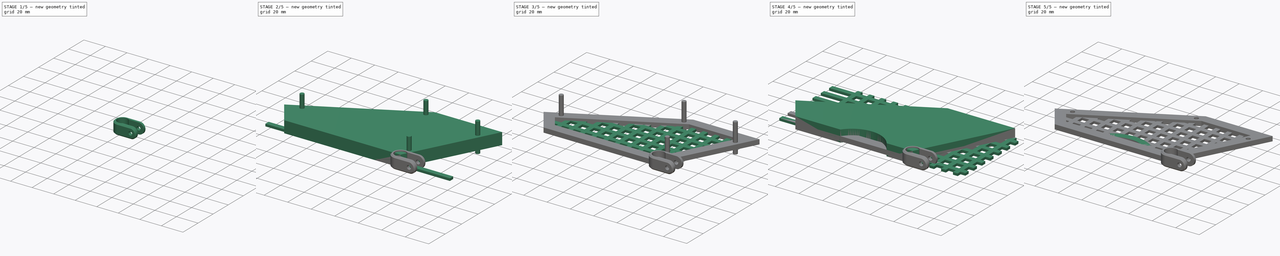
[diagram: build sequence overview — one tinted view per stage of 5, left to right]
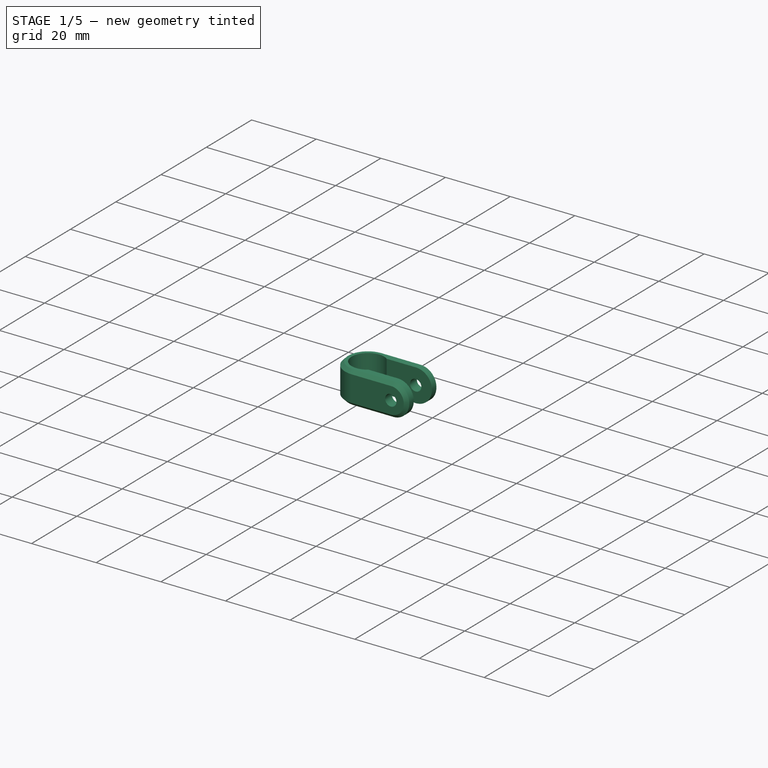
[diagram: stage 1 of 5 — iso view after this stage's code; geometry added in this stage tinted green]
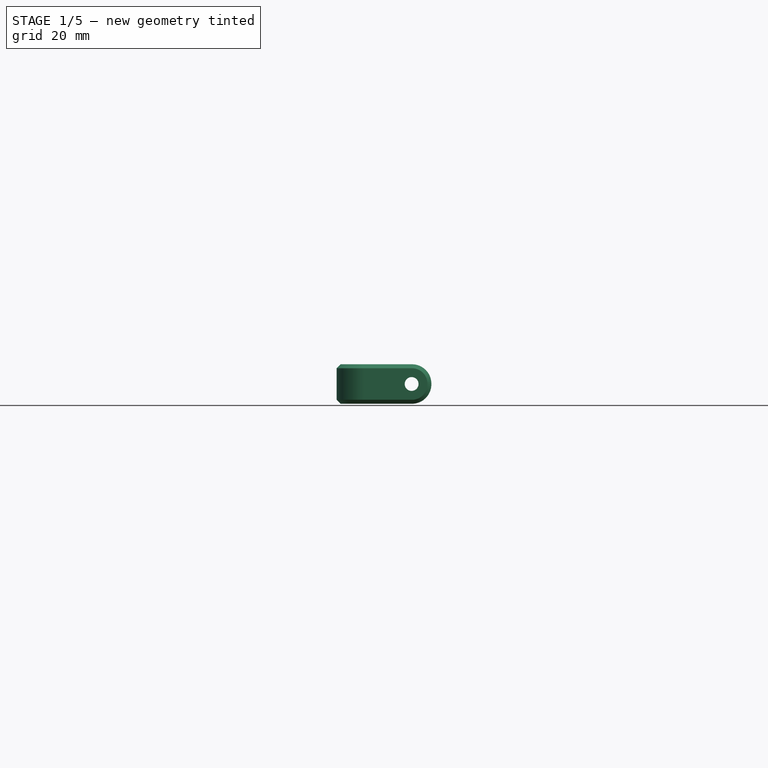
[diagram: stage 1 of 5 — front view after this stage's code; geometry added in this stage tinted green]
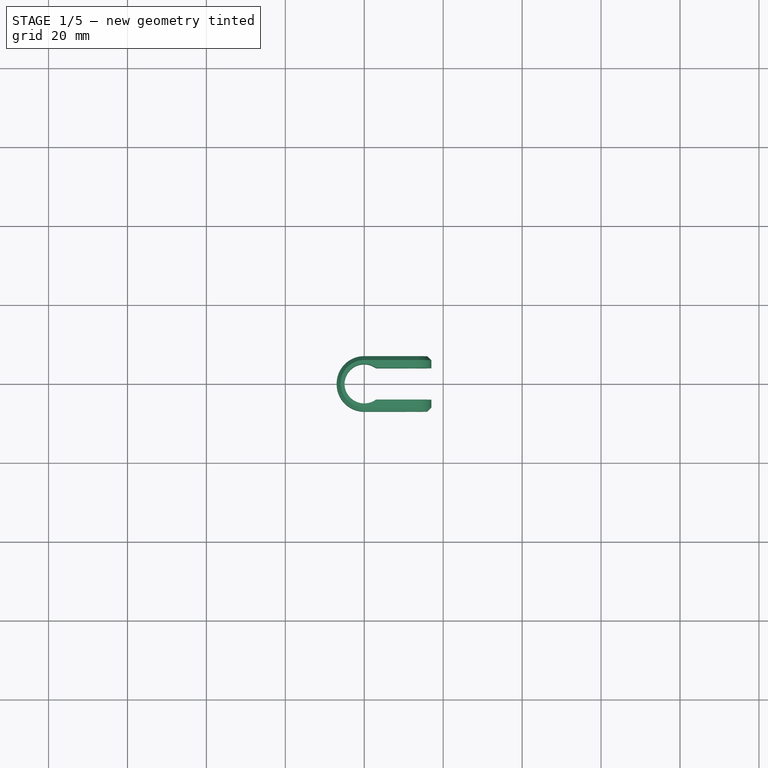
[diagram: stage 1 of 5 — top view after this stage's code; geometry added in this stage tinted green]
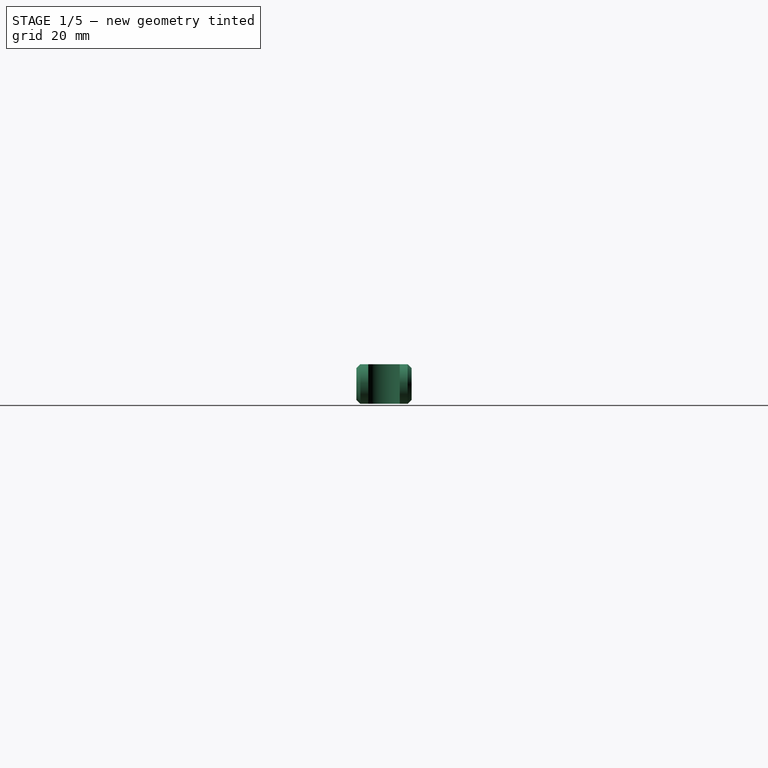
[diagram: stage 1 of 5 — right view after this stage's code; geometry added in this stage tinted green]
FCSTD DOCUMENT  (FreeCAD 0.15R4671 (Git))
Label: ventana_hpi_baja
License: All rights reserved
LicenseURL: http://en.wikipedia.org/wiki/All_rights_reserved
objects: Sketcher::SketchObject×7, PartDesign::Pad×7, Part::MultiFuse×4, Part::Cut×3, Part::Box×2, Part::FeaturePython×2, Part::MultiCommon×2, Part::Feature×2, Part::Cylinder×1, Part::Fillet×1, Part::Chamfer×1
note: 39 computed .brp shape members not serialized (recipe doc carries the construction recipe); baked Part::Feature solids carry a one-line shape summary decoded from their .brp

FEATURE [Part::Feature] Cut003  label="ventana"
  shape: bbox 150.6 x 71.08 x 4 mm, 200 faces (baked)
FEATURE [Sketcher::SketchObject] Sketch005
  sketch-geometry (8):
    g0: ArcOfCircle CenterX=0 CenterY=0 CenterZ=0 NormalX=0 NormalY=0 NormalZ=1 Radius=5 StartAngle=0.927295 EndAngle=5.35589
    g1: ArcOfCircle CenterX=0 CenterY=0 CenterZ=0 NormalX=0 NormalY=0 NormalZ=1 Radius=7 StartAngle=1.5708 EndAngle=4.71239
    g2: LineSegment StartX=0 StartY=7 StartZ=0 EndX=17 EndY=7 EndZ=0
    g3: LineSegment StartX=0 StartY=-7 StartZ=0 EndX=17 EndY=-7 EndZ=0
    g4: LineSegment StartX=17 StartY=-7 StartZ=0 EndX=17 EndY=-4 EndZ=0
    g5: LineSegment StartX=17 StartY=-4 StartZ=0 EndX=3 EndY=-4 EndZ=0
    g6: LineSegment StartX=3 StartY=4 StartZ=0 EndX=17 EndY=4 EndZ=0
    g7: LineSegment StartX=17 StartY=4 StartZ=0 EndX=17 EndY=7 EndZ=0
  constraints (23):
    c: Coincident(g0,g-1)
    c: Coincident(g1,g-1)
    c: Radius(g0) = 5
    c: Radius(g1) = 7
    c: PointOnObject(g1,g-2)
    c: PointOnObject(g1,g-2)
    c: Coincident(g2,g1)
    c: Horizontal(g2)
    c: Tangent(g1,g3) = -1.5708
    c: Coincident(g3,g4)
    c: Vertical(g4)
    c: Coincident(g4,g5)
    c: Horizontal(g5)
    c: Horizontal(g6)
    c: Coincident(g6,g7)
    c: Coincident(g7,g2)
    c: Vertical(g7)
    c: Symmetric(g6,g5,g-1)
    c: Distance(g6,g4) = 8
    c: Coincident(g0,g6)
    c: Coincident(g0,g5)
    c: Equal(g6,g5)
    c: Distance(g6) = 14
FEATURE [PartDesign::Pad] Pad006
  Length = 10
  Length2 = 100
  Sketch = -> Sketch005
  Type = 0
FEATURE [Sketcher::SketchObject] Sketch006
  Placement = pos=(0,-7,0) rot=(1,0,0;1.5708rad)
  Support = -> Pad006 [Face4]
FEATURE [Part::Cylinder] Cylinder
  Angle = 360
  Height = 20
  Placement = pos=(12,-10,5) rot=(-1,0,0;1.5708rad)
  Radius = 1.75
FEATURE [Part::Cut] Cut004
  Base = -> Pad006
  Tool = -> Cylinder
FEATURE [Part::Fillet] Fillet
  Base = -> Cut004
  Edges = 4 edges r=4.9: [Edge13,Edge17,Edge18,Edge22]
FEATURE [Part::Chamfer] Chamfer
  Base = -> Fillet
  Edges = 1 edges r=1: [Edge23]
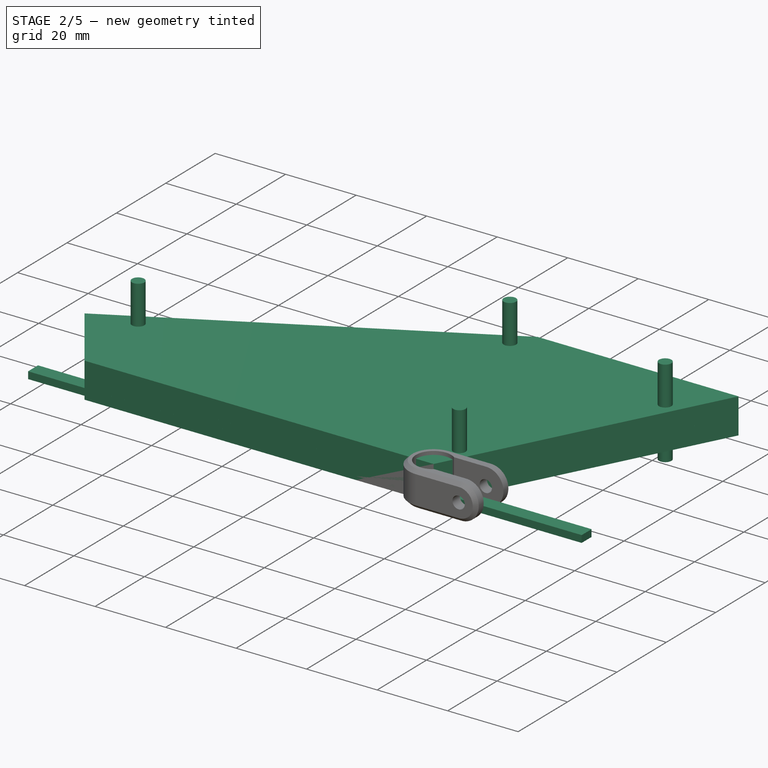
[diagram: stage 2 of 5 — iso view after this stage's code; geometry added in this stage tinted green]
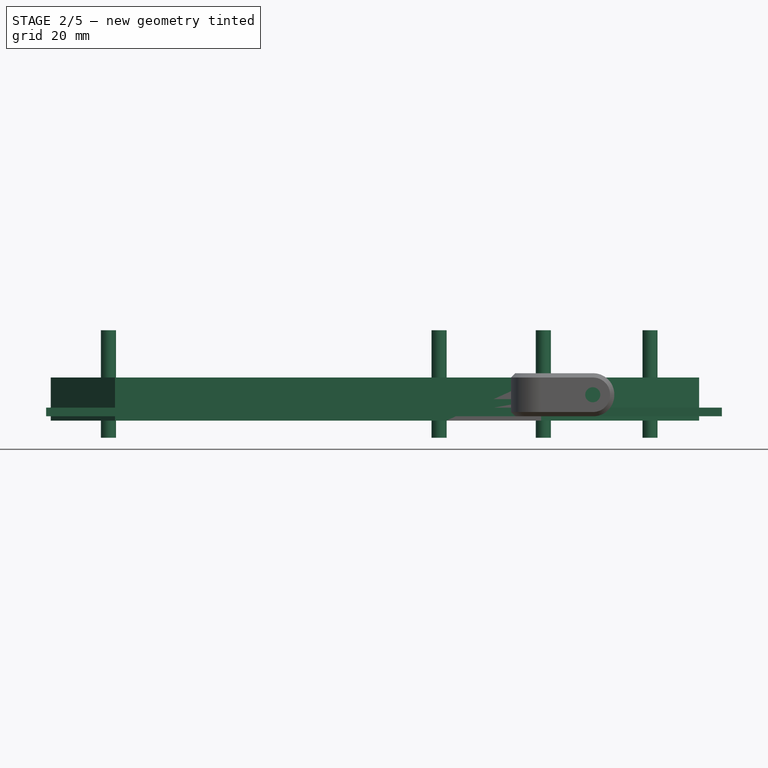
[diagram: stage 2 of 5 — front view after this stage's code; geometry added in this stage tinted green]
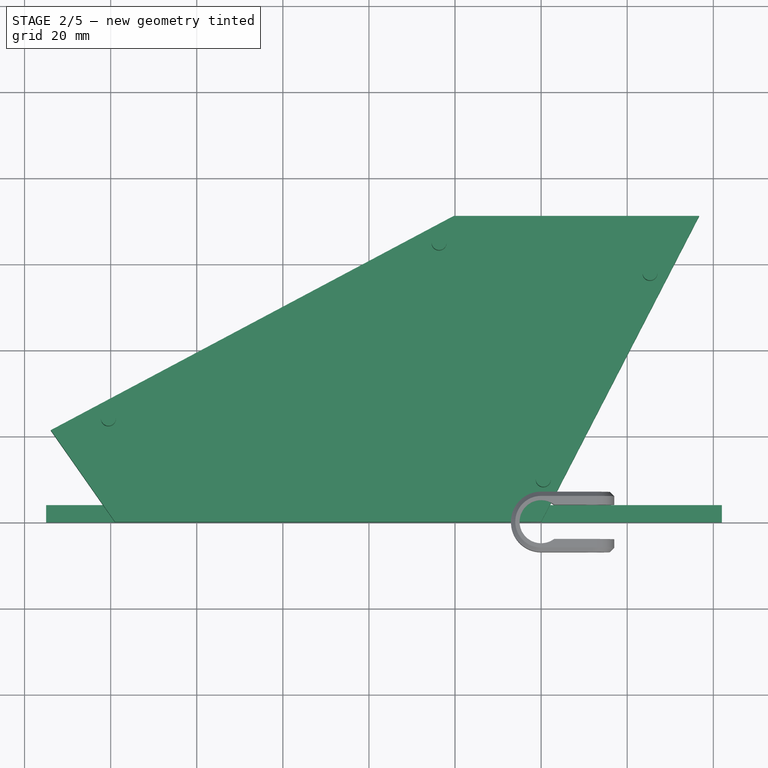
[diagram: stage 2 of 5 — top view after this stage's code; geometry added in this stage tinted green]
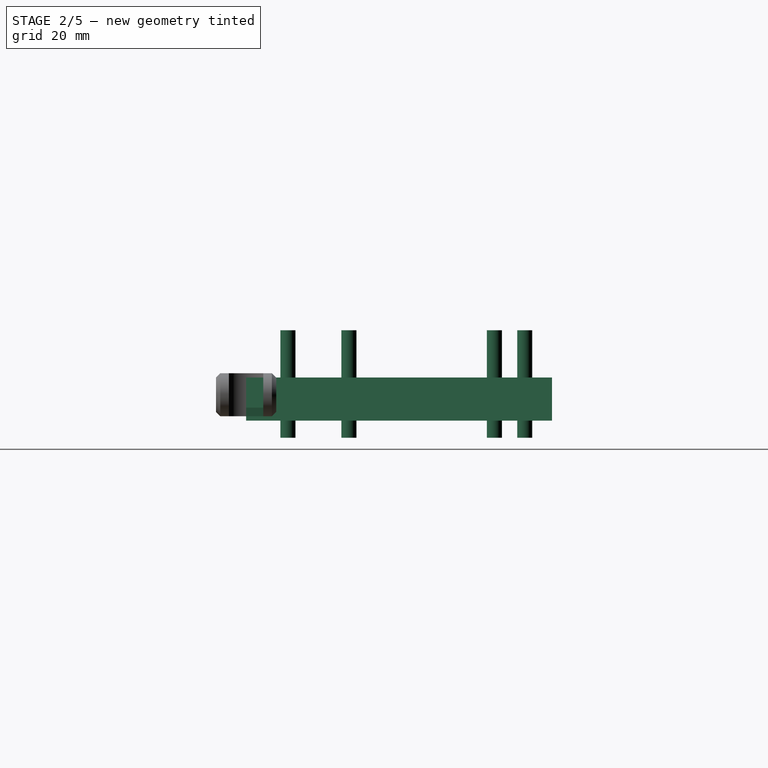
[diagram: stage 2 of 5 — right view after this stage's code; geometry added in this stage tinted green]
FEATURE [Part::Box] Box001  label="Cube001"
  Height = 2
  Length = 157
  Placement = pos=(-115,0,0) rot=(0,0,1;0rad)
  Width = 4
FEATURE [Sketcher::SketchObject] Sketch003
  Placement = pos=(0,0,-1) rot=(0,0,1;0rad)
  sketch-geometry (34):
    g0: LineSegment StartX=-113.913 StartY=21.298 StartZ=0 EndX=-20.2882 EndY=71.0791 EndZ=0
    g1: LineSegment StartX=-20.2882 StartY=71.0791 StartZ=0 EndX=36.7118 EndY=71.0791 EndZ=0
    g2: LineSegment StartX=36.7118 StartY=71.0791 StartZ=0 EndX=0 EndY=-4e-12 EndZ=0
    g3: LineSegment StartX=0 StartY=-4e-12 StartZ=0 EndX=-22 EndY=-4e-12 EndZ=0
    g4: LineSegment StartX=-113.913 StartY=21.298 StartZ=0 EndX=-99 EndY=-4e-12 EndZ=0
    g5: LineSegment StartX=-99 StartY=-4e-12 StartZ=0 EndX=-61 EndY=-4e-12 EndZ=0
    g6: ArcOfCircle [constr] CenterX=-41.5 CenterY=-13.9911 CenterZ=0 NormalX=0 NormalY=0 NormalZ=1 Radius=24 StartAngle=0.622368 EndAngle=2.51922
    g7: LineSegment StartX=-61 StartY=-4e-12 StartZ=0 EndX=-22 EndY=-4e-12 EndZ=0
    g8: LineSegment [constr] StartX=-61 StartY=8 StartZ=0 EndX=-94.8355 EndY=8 EndZ=0
    g9: LineSegment [constr] StartX=-94.8355 StartY=8 StartZ=0 EndX=-102.173 EndY=18.4795 EndZ=0
    g10: LineSegment [constr] StartX=-102.173 StartY=18.4795 StartZ=0 EndX=-18.2936 EndY=63.0791 EndZ=0
    g11: LineSegment [constr] StartX=-18.2936 StartY=63.0791 StartZ=0 EndX=23.5758 EndY=63.0791 EndZ=0
    g12: LineSegment [constr] StartX=23.5758 StartY=63.0791 StartZ=0 EndX=-4.87211 EndY=8 EndZ=0
    g13: LineSegment [constr] StartX=-4.87211 StartY=8 StartZ=0 EndX=-22 EndY=8 EndZ=0
    g14: LineSegment [constr] StartX=-61 StartY=8 StartZ=0 EndX=-22 EndY=8 EndZ=0
    g15: LineSegment [constr] StartX=23.5758 StartY=63.0791 StartZ=0 EndX=30.6837 EndY=59.408 EndZ=0
    g16: LineSegment [constr] StartX=-94.8355 StartY=8 StartZ=0 EndX=-101.389 EndY=3.41139 EndZ=0
    g17: LineSegment [constr] StartX=-102.173 StartY=18.4795 StartZ=0 EndX=-105.929 EndY=25.5431 EndZ=0
    g18: ArcOfCircle [constr] CenterX=-41.5 CenterY=-13.9911 CenterZ=0 NormalX=0 NormalY=0 NormalZ=1 Radius=29.3914 StartAngle=0.845365 EndAngle=2.29623
    g19: LineSegment [constr] StartX=-4.87211 StartY=8 StartZ=0 EndX=-4.87211 EndY=0 EndZ=0
    g20: LineSegment [constr] StartX=23.5758 StartY=71.0791 StartZ=0 EndX=23.5758 EndY=63.0791 EndZ=0
    g21: Circle [constr] CenterX=-100.519 CenterY=23.8892 CenterZ=0 NormalX=0 NormalY=0 NormalZ=1 Radius=1.75
    g22: Circle [constr] CenterX=-23.7033 CenterY=64.733 CenterZ=0 NormalX=0 NormalY=0 NormalZ=1 Radius=1.75
    g23: Circle [constr] CenterX=25.2942 CenterY=57.6896 CenterZ=0 NormalX=0 NormalY=0 NormalZ=1 Radius=1.75
    g24: LineSegment [constr] StartX=-100.519 StartY=23.8892 StartZ=0 EndX=-23.7033 EndY=64.733 EndZ=0
    g25: LineSegment [constr] StartX=23.5758 StartY=63.0791 StartZ=0 EndX=25.2942 EndY=57.6896 EndZ=0
    g26: LineSegment [constr] StartX=25.2942 StartY=57.6896 StartZ=0 EndX=30.6837 EndY=59.408 EndZ=0
    g27: LineSegment [constr] StartX=-105.929 StartY=25.5431 StartZ=0 EndX=-100.519 EndY=23.8892 EndZ=0
    g28: LineSegment [constr] StartX=-100.519 StartY=23.8892 StartZ=0 EndX=-102.173 EndY=18.4795 EndZ=0
    g29: LineSegment [constr] StartX=-18.2936 StartY=63.0791 StartZ=0 EndX=-22.0493 EndY=70.1427 EndZ=0
    g30: LineSegment [constr] StartX=-22.0493 StartY=70.1427 StartZ=0 EndX=-23.7033 EndY=64.733 EndZ=0
    g31: LineSegment [constr] StartX=25.2942 StartY=57.6896 StartZ=0 EndX=0.517434 EndY=9.71837 EndZ=0
    g32: Circle [constr] CenterX=0.517434 CenterY=9.71837 CenterZ=0 NormalX=0 NormalY=0 NormalZ=1 Radius=1.75
    g33: LineSegment [constr] StartX=0.517434 StartY=9.71837 StartZ=0 EndX=-4.87211 EndY=8 EndZ=0
  constraints (92):
    c: Coincident(g0,g1)
    c: Horizontal(g1)
    c: Coincident(g1,g2)
    c: Coincident(g2,g3)
    c: Coincident(g0,g4)
    c: Coincident(g4,g5)
    c: Horizontal(g5)
    c: Coincident(g6,g5)
    c: Coincident(g6,g3)
    c: Horizontal(g3)
    c: Angle(g0,g1) = 2.6529
    c: Angle(g4,g0) = 1.44862
    c: Distance(g4,g2) = 99
    c: Distance(g3) = 22
    c: Distance(g5) = 38
    c: Coincident(g7,g5)
    c: Coincident(g7,g3)
    c: Horizontal(g7)
    c: Radius(g6) = 24
    c: Distance(g4) = 26
    c: Distance(g2) = 80
    c: Distance(g1) = 57
    c: Coincident(g-1,g2)
    c: Horizontal(g8)
    c: Coincident(g8,g9)
    c: Coincident(g9,g10)
    c: Coincident(g10,g11)
    c: Coincident(g11,g12)
    c: Coincident(g12,g13)
    c: Horizontal(g13)
    c: Horizontal(g11)
    c: Parallel(g4,g9)
    c: Parallel(g0,g10)
    c: Parallel(g12,g2)
    c: Coincident(g14,g8)
    c: Horizontal(g14)
    c: Coincident(g15,g11)
    c: PointOnObject(g15,g2)
    c: Perpendicular(g2,g15)
    c: Distance(g15) = 8
    c: Coincident(g16,g8)
    c: PointOnObject(g16,g4)
    c: Perpendicular(g4,g16)
    c: Coincident(g17,g9)
    c: PointOnObject(g17,g0)
    c: Perpendicular(g0,g17)
    c: Equal(g14,g7)
    c: Coincident(g18,g6)
    c: Coincident(g18,g8)
    c: Equal(g17,g16)
    c: Equal(g16,g15)
    c: Coincident(g19,g12)
    c: PointOnObject(g19,g3)
    c: Vertical(g19)
    c: Coincident(g13,g14)
    c: Equal(g19,g15)
    c: Coincident(g13,g18)
    c: PointOnObject(g20,g1)
    c: Coincident(g20,g11)
    c: Vertical(g20)
    c: Equal(g20,g17)
    c: Coincident(g24,g21)
    c: Coincident(g24,g22)
    c: Parallel(g0,g24)
    c: Radius(g21) = 1.75
    c: Equal(g21,g22)
    c: Equal(g21,g23)
    c: Coincident(g25,g11)
    c: Coincident(g25,g23)
    c: Coincident(g26,g23)
    c: Coincident(g26,g15)
    c: Perpendicular(g26,g25)
    c: Equal(g25,g26)
    c: Coincident(g17,g27)
    c: Coincident(g27,g21)
    c: Coincident(g27,g28)
    c: Coincident(g28,g9)
    c: Equal(g27,g28)
    c: Perpendicular(g28,g27)
    c: Coincident(g29,g10)
    c: PointOnObject(g29,g0)
    c: Perpendicular(g0,g29)
    c: Coincident(g30,g29)
    c: Coincident(g30,g22)
    c: Equal(g30,g27)
    c: Coincident(g31,g23)
    c: Parallel(g12,g31)
    c: Coincident(g32,g31)
    c: Equal(g32,g22)
    c: Coincident(g33,g31)
    c: Coincident(g33,g12)
    c: Equal(g33,g26)
FEATURE [PartDesign::Pad] Pad003
  Length = 10
  Length2 = 100
  Placement = pos=(0,0,-1) rot=(0,0,1;0rad)
  Sketch = -> Sketch003
  Type = 0
FEATURE [Sketcher::SketchObject] Sketch004
  sketch-geometry (34):
    g0: LineSegment StartX=-113.913 StartY=21.298 StartZ=0 EndX=-20.2882 EndY=71.0791 EndZ=0
    g1: LineSegment StartX=-20.2882 StartY=71.0791 StartZ=0 EndX=36.7118 EndY=71.0791 EndZ=0
    g2: LineSegment StartX=36.7118 StartY=71.0791 StartZ=0 EndX=0 EndY=0 EndZ=0
    g3: LineSegment StartX=0 StartY=0 StartZ=0 EndX=-22 EndY=0 EndZ=0
    g4: LineSegment StartX=-113.913 StartY=21.298 StartZ=0 EndX=-99 EndY=0 EndZ=0
    g5: LineSegment StartX=-99 StartY=0 StartZ=0 EndX=-61 EndY=0 EndZ=0
    g6: ArcOfCircle [constr] CenterX=-41.5 CenterY=-13.9911 CenterZ=0 NormalX=0 NormalY=0 NormalZ=1 Radius=24 StartAngle=0.622368 EndAngle=2.51922
    g7: LineSegment StartX=-61 StartY=0 StartZ=0 EndX=-22 EndY=0 EndZ=0
    g8: LineSegment StartX=-61 StartY=8 StartZ=0 EndX=-94.8355 EndY=8 EndZ=0
    g9: LineSegment StartX=-94.8355 StartY=8 StartZ=0 EndX=-102.173 EndY=18.4795 EndZ=0
    g10: LineSegment StartX=-102.173 StartY=18.4795 StartZ=0 EndX=-18.2936 EndY=63.0791 EndZ=0
    g11: LineSegment StartX=-18.2936 StartY=63.0791 StartZ=0 EndX=23.5758 EndY=63.0791 EndZ=0
    g12: LineSegment StartX=23.5758 StartY=63.0791 StartZ=0 EndX=-4.87211 EndY=8 EndZ=0
    g13: LineSegment StartX=-4.87211 StartY=8 StartZ=0 EndX=-22 EndY=8 EndZ=0
    g14: LineSegment StartX=-61 StartY=8 StartZ=0 EndX=-22 EndY=8 EndZ=0
    g15: LineSegment [constr] StartX=23.5758 StartY=63.0791 StartZ=0 EndX=30.6837 EndY=59.408 EndZ=0
    g16: LineSegment [constr] StartX=-94.8355 StartY=8 StartZ=0 EndX=-101.389 EndY=3.41139 EndZ=0
    g17: LineSegment [constr] StartX=-102.173 StartY=18.4795 StartZ=0 EndX=-105.929 EndY=25.5431 EndZ=0
    g18: ArcOfCircle [constr] CenterX=-41.5 CenterY=-13.9911 CenterZ=0 NormalX=0 NormalY=0 NormalZ=1 Radius=29.3914 StartAngle=0.845365 EndAngle=2.29623
    g19: LineSegment [constr] StartX=-4.87211 StartY=8 StartZ=0 EndX=-4.87211 EndY=0 EndZ=0
    g20: LineSegment [constr] StartX=23.5758 StartY=71.0791 StartZ=0 EndX=23.5758 EndY=63.0791 EndZ=0
    g21: Circle CenterX=-100.519 CenterY=23.8892 CenterZ=0 NormalX=0 NormalY=0 NormalZ=1 Radius=1.75
    g22: Circle CenterX=-23.7033 CenterY=64.733 CenterZ=0 NormalX=0 NormalY=0 NormalZ=1 Radius=1.75
    g23: Circle CenterX=25.2942 CenterY=57.6896 CenterZ=0 NormalX=0 NormalY=0 NormalZ=1 Radius=1.75
    g24: LineSegment [constr] StartX=-100.519 StartY=23.8892 StartZ=0 EndX=-23.7033 EndY=64.733 EndZ=0
    g25: LineSegment [constr] StartX=23.5758 StartY=63.0791 StartZ=0 EndX=25.2942 EndY=57.6896 EndZ=0
    g26: LineSegment [constr] StartX=25.2942 StartY=57.6896 StartZ=0 EndX=30.6837 EndY=59.408 EndZ=0
    g27: LineSegment [constr] StartX=-105.929 StartY=25.5431 StartZ=0 EndX=-100.519 EndY=23.8892 EndZ=0
    g28: LineSegment [constr] StartX=-100.519 StartY=23.8892 StartZ=0 EndX=-102.173 EndY=18.4795 EndZ=0
    g29: LineSegment [constr] StartX=-18.2936 StartY=63.0791 StartZ=0 EndX=-22.0493 EndY=70.1427 EndZ=0
    g30: LineSegment [constr] StartX=-22.0493 StartY=70.1427 StartZ=0 EndX=-23.7033 EndY=64.733 EndZ=0
    g31: LineSegment [constr] StartX=25.2942 StartY=57.6896 StartZ=0 EndX=0.517434 EndY=9.71837 EndZ=0
    g32: Circle CenterX=0.517434 CenterY=9.71837 CenterZ=0 NormalX=0 NormalY=0 NormalZ=1 Radius=1.75
    g33: LineSegment [constr] StartX=0.517434 StartY=9.71837 StartZ=0 EndX=-4.87211 EndY=8 EndZ=0
  constraints (92):
    c: Coincident(g0,g1)
    c: Horizontal(g1)
    c: Coincident(g1,g2)
    c: Coincident(g2,g3)
    c: Coincident(g0,g4)
    c: Coincident(g4,g5)
    c: Horizontal(g5)
    c: Coincident(g6,g5)
    c: Coincident(g6,g3)
    c: Horizontal(g3)
    c: Angle(g0,g1) = 2.6529
    c: Angle(g4,g0) = 1.44862
    c: Distance(g4,g2) = 99
    c: Distance(g3) = 22
    c: Distance(g5) = 38
    c: Coincident(g7,g5)
    c: Coincident(g7,g3)
    c: Horizontal(g7)
    c: Radius(g6) = 24
    c: Distance(g4) = 26
    c: Distance(g2) = 80
    c: Distance(g1) = 57
    c: Coincident(g-1,g2)
    c: Horizontal(g8)
    c: Coincident(g8,g9)
    c: Coincident(g9,g10)
    c: Coincident(g10,g11)
    c: Coincident(g11,g12)
    c: Coincident(g12,g13)
    c: Horizontal(g13)
    c: Horizontal(g11)
    c: Parallel(g4,g9)
    c: Parallel(g0,g10)
    c: Parallel(g12,g2)
    c: Coincident(g14,g8)
    c: Horizontal(g14)
    c: Coincident(g15,g11)
    c: PointOnObject(g15,g2)
    c: Perpendicular(g2,g15)
    c: Distance(g15) = 8
    c: Coincident(g16,g8)
    c: PointOnObject(g16,g4)
    c: Perpendicular(g4,g16)
    c: Coincident(g17,g9)
    c: PointOnObject(g17,g0)
    c: Perpendicular(g0,g17)
    c: Equal(g14,g7)
    c: Coincident(g18,g6)
    c: Coincident(g18,g8)
    c: Equal(g17,g16)
    c: Equal(g16,g15)
    c: Coincident(g19,g12)
    c: PointOnObject(g19,g3)
    c: Vertical(g19)
    c: Coincident(g13,g14)
    c: Equal(g19,g15)
    c: Coincident(g13,g18)
    c: PointOnObject(g20,g1)
    c: Coincident(g20,g11)
    c: Vertical(g20)
    c: Equal(g20,g17)
    c: Coincident(g24,g21)
    c: Coincident(g24,g22)
    c: Parallel(g0,g24)
    c: Radius(g21) = 1.75
    c: Equal(g21,g22)
    c: Equal(g21,g23)
    c: Coincident(g25,g11)
    c: Coincident(g25,g23)
    c: Coincident(g26,g23)
    c: Coincident(g26,g15)
    c: Perpendicular(g26,g25)
    c: Equal(g25,g26)
    c: Coincident(g17,g27)
    c: Coincident(g27,g21)
    c: Coincident(g27,g28)
    c: Coincident(g28,g9)
    c: Equal(g27,g28)
    c: Perpendicular(g28,g27)
    c: Coincident(g29,g10)
    c: PointOnObject(g29,g0)
    c: Perpendicular(g0,g29)
    c: Coincident(g30,g29)
    c: Coincident(g30,g22)
    c: Equal(g30,g27)
    c: Coincident(g31,g23)
    c: Parallel(g12,g31)
    c: Coincident(g32,g31)
    c: Equal(g32,g22)
    c: Coincident(g33,g31)
    c: Coincident(g33,g12)
    c: Equal(g33,g26)
FEATURE [PartDesign::Pad] Pad004
  Length = 4
  Length2 = 100
  Sketch = -> Sketch004
  Type = 0
FEATURE [PartDesign::Pad] Pad005
  Length = 25
  Length2 = 100
  Placement = pos=(0,0,-5) rot=(0,0,1;0rad)
  Sketch = -> Sketch002
  Type = 0
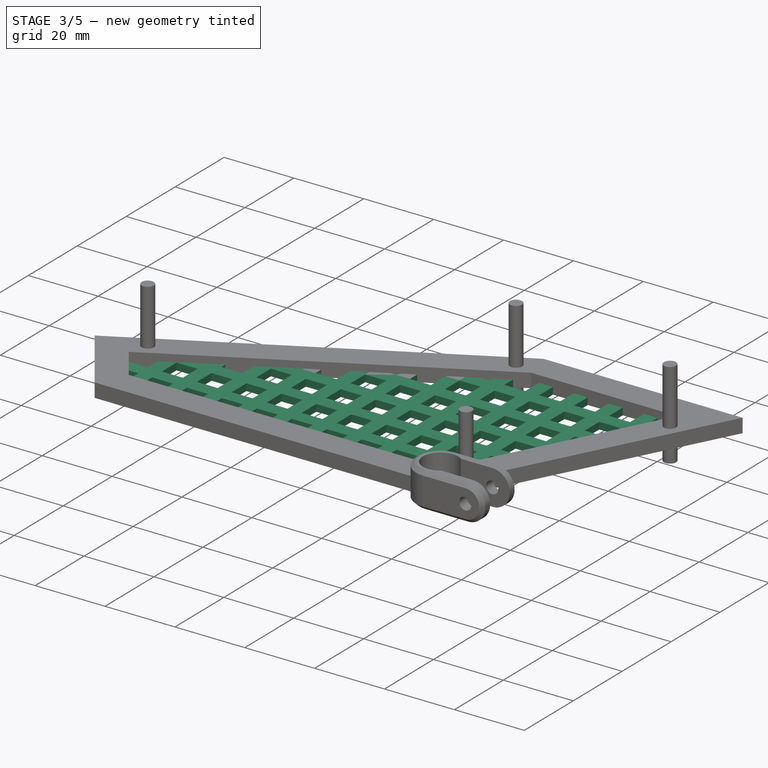
[diagram: stage 3 of 5 — iso view after this stage's code; geometry added in this stage tinted green]
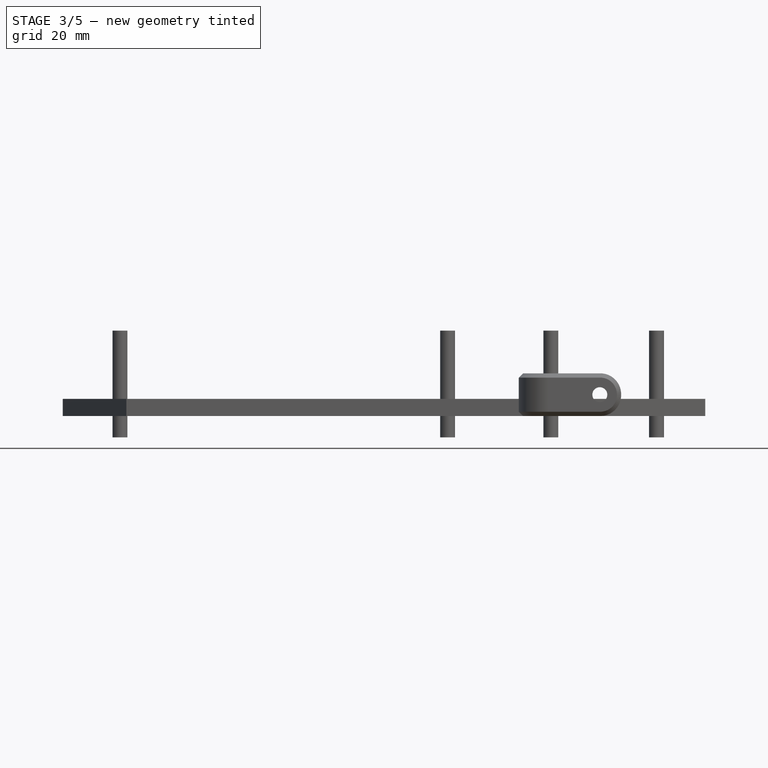
[diagram: stage 3 of 5 — front view after this stage's code; geometry added in this stage tinted green]
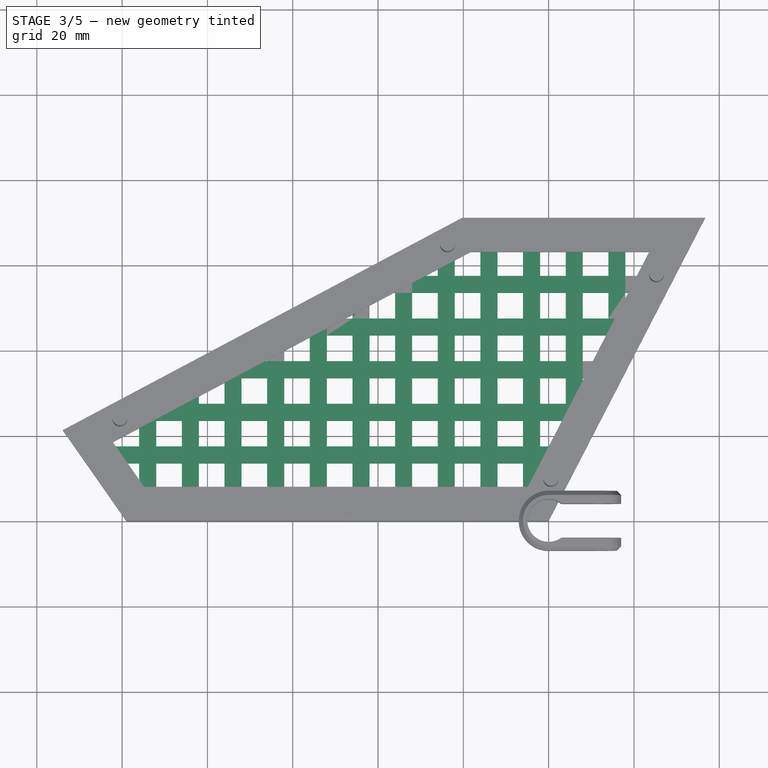
[diagram: stage 3 of 5 — top view after this stage's code; geometry added in this stage tinted green]
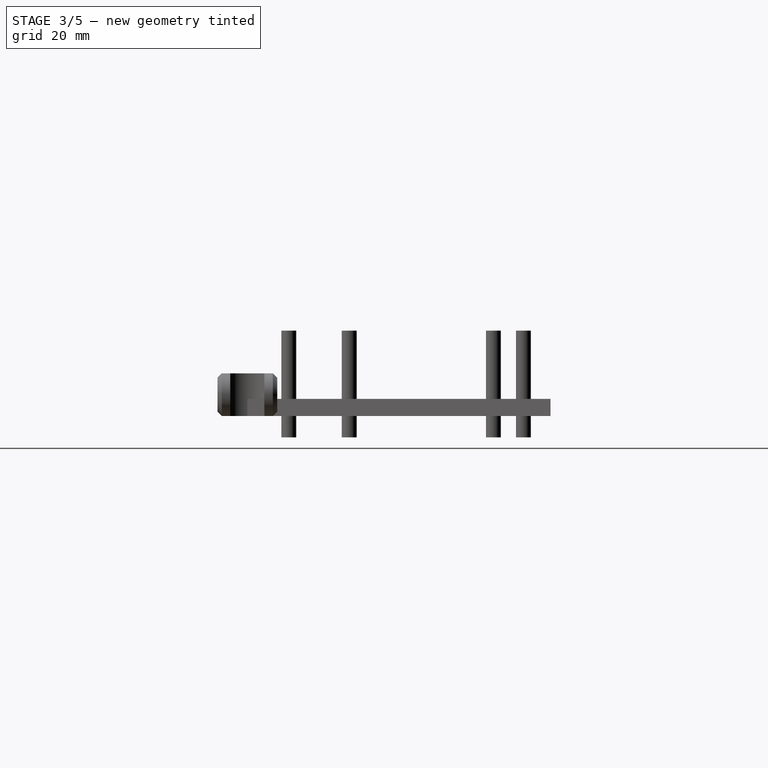
[diagram: stage 3 of 5 — right view after this stage's code; geometry added in this stage tinted green]
FEATURE [Part::Box] Box  label="Cube"
  Height = 2
  Length = 4
  Width = 71
FEATURE [Part::FeaturePython] Array  # Draft array (typed FeaturePython)
  Angle = 360
  ArrayType = 0
  Axis = (0,0,1)
  Base = -> Box
  Center = (0,0,0)
  Fuse = false
  IntervalAxis = (0,0,0)
  IntervalX = (10,0,0)
  IntervalY = (0,1,0)
  IntervalZ = (0,0,0)
  NumberPolar = 1
  NumberX = 14
  NumberY = 1
  NumberZ = 1
  Placement = pos=(-96,0,0) rot=(0,0,1;0rad)
FEATURE [Part::FeaturePython] Array001  # Draft array (typed FeaturePython)
  Angle = 360
  ArrayType = 0
  Axis = (0,0,1)
  Base = -> Box001
  Center = (0,0,0)
  Fuse = false
  IntervalAxis = (0,0,0)
  IntervalX = (1,0,0)
  IntervalY = (0,10,0)
  IntervalZ = (0,0,0)
  NumberPolar = 1
  NumberX = 1
  NumberY = 7
  NumberZ = 1
  Placement = pos=(0,3.5,0) rot=(0,0,1;0rad)
FEATURE [Part::Feature] Cut001  label="ventana_dep"
  shape: bbox 150.6 x 71.08 x 4 mm, 199 faces (baked)
FEATURE [Part::MultiFuse] Fusion002
  Shapes = -> [Array,Array001]
FEATURE [Part::MultiCommon] Common001
  Shapes = -> [Fusion002,Pad003]
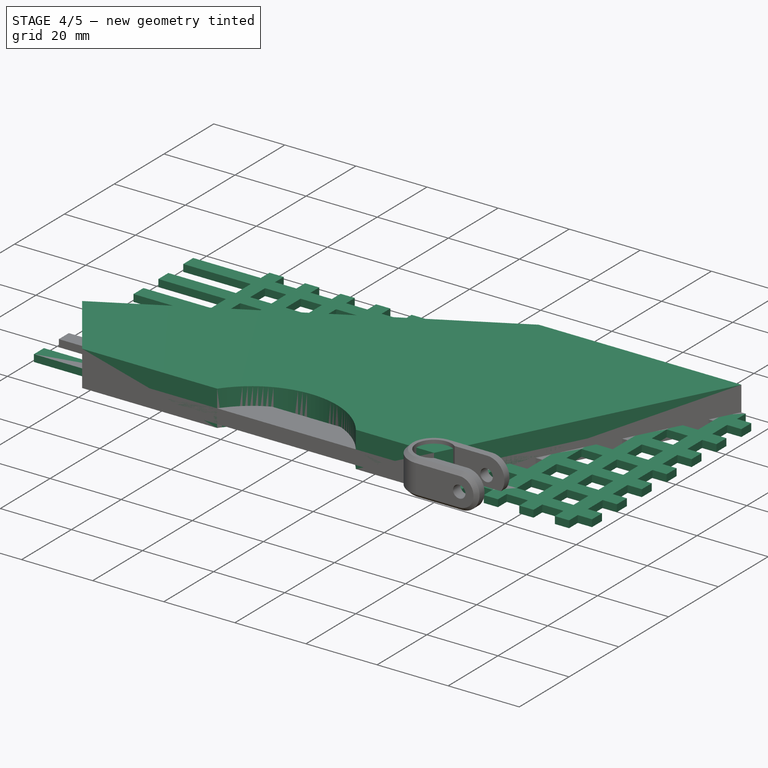
[diagram: stage 4 of 5 — iso view after this stage's code; geometry added in this stage tinted green]
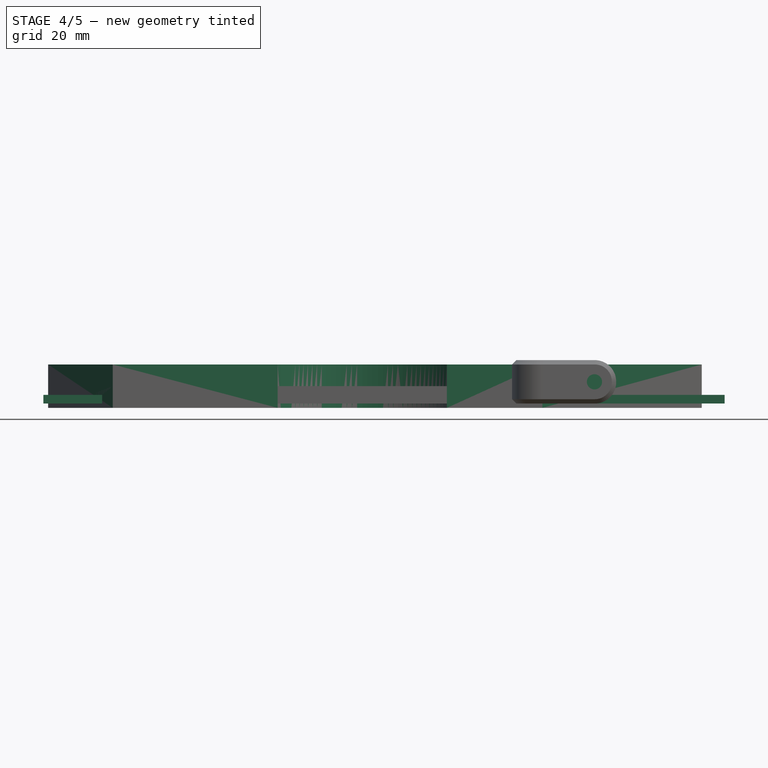
[diagram: stage 4 of 5 — front view after this stage's code; geometry added in this stage tinted green]
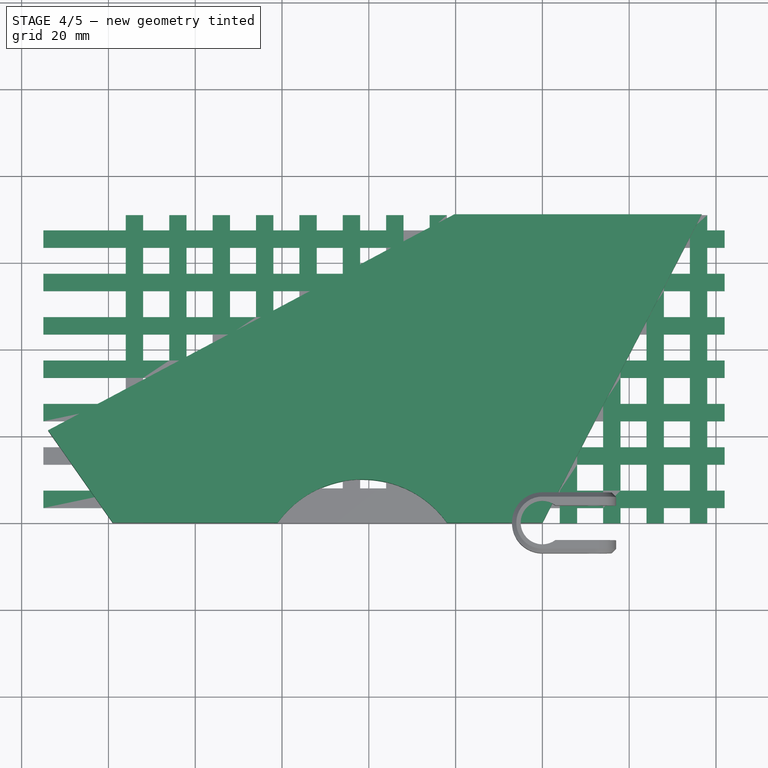
[diagram: stage 4 of 5 — top view after this stage's code; geometry added in this stage tinted green]
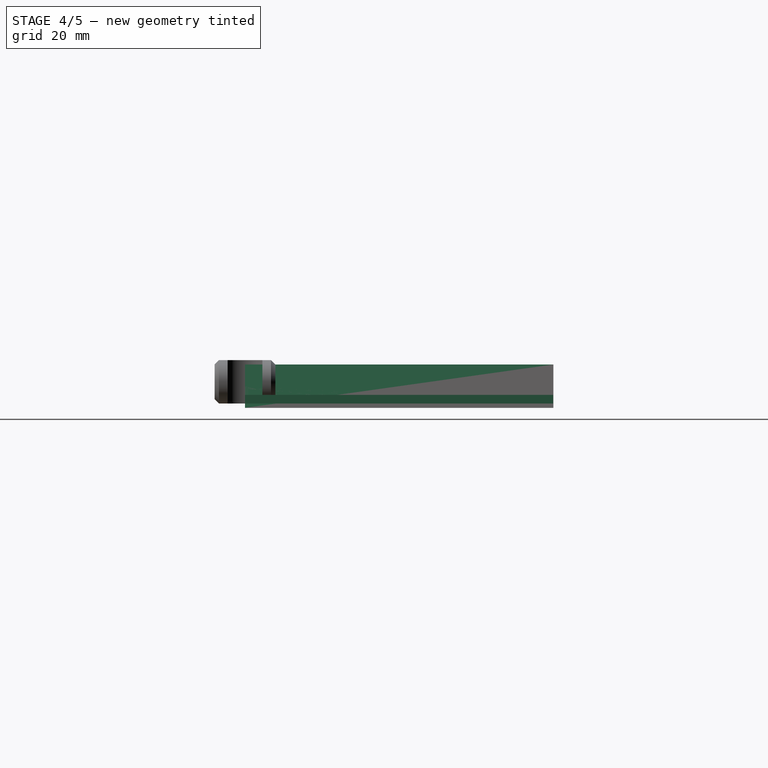
[diagram: stage 4 of 5 — right view after this stage's code; geometry added in this stage tinted green]
FEATURE [Sketcher::SketchObject] Sketch001
  Placement = pos=(0,0,-1) rot=(0,0,1;0rad)
  sketch-geometry (34):
    g0: LineSegment StartX=-113.913 StartY=21.298 StartZ=0 EndX=-20.2882 EndY=71.0791 EndZ=0
    g1: LineSegment StartX=-20.2882 StartY=71.0791 StartZ=0 EndX=36.7118 EndY=71.0791 EndZ=0
    g2: LineSegment StartX=36.7118 StartY=71.0791 StartZ=0 EndX=0 EndY=-4e-12 EndZ=0
    g3: LineSegment StartX=0 StartY=-4e-12 StartZ=0 EndX=-22 EndY=-4e-12 EndZ=0
    g4: LineSegment StartX=-113.913 StartY=21.298 StartZ=0 EndX=-99 EndY=-4e-12 EndZ=0
    g5: LineSegment StartX=-99 StartY=-4e-12 StartZ=0 EndX=-61 EndY=-4e-12 EndZ=0
    g6: ArcOfCircle CenterX=-41.5 CenterY=-13.9911 CenterZ=0 NormalX=0 NormalY=0 NormalZ=1 Radius=24 StartAngle=0.622368 EndAngle=2.51922
    g7: LineSegment [constr] StartX=-61 StartY=-4e-12 StartZ=0 EndX=-22 EndY=-4e-12 EndZ=0
    g8: LineSegment [constr] StartX=-61 StartY=8 StartZ=0 EndX=-94.8355 EndY=8 EndZ=0
    g9: LineSegment [constr] StartX=-94.8355 StartY=8 StartZ=0 EndX=-102.173 EndY=18.4795 EndZ=0
    g10: LineSegment [constr] StartX=-102.173 StartY=18.4795 StartZ=0 EndX=-18.2936 EndY=63.0791 EndZ=0
    g11: LineSegment [constr] StartX=-18.2936 StartY=63.0791 StartZ=0 EndX=23.5758 EndY=63.0791 EndZ=0
    g12: LineSegment [constr] StartX=23.5758 StartY=63.0791 StartZ=0 EndX=-4.87211 EndY=8 EndZ=0
    g13: LineSegment [constr] StartX=-4.87211 StartY=8 StartZ=0 EndX=-22 EndY=8 EndZ=0
    g14: LineSegment [constr] StartX=-61 StartY=8 StartZ=0 EndX=-22 EndY=8 EndZ=0
    g15: LineSegment [constr] StartX=23.5758 StartY=63.0791 StartZ=0 EndX=30.6837 EndY=59.408 EndZ=0
    g16: LineSegment [constr] StartX=-94.8355 StartY=8 StartZ=0 EndX=-101.389 EndY=3.41139 EndZ=0
    g17: LineSegment [constr] StartX=-102.173 StartY=18.4795 StartZ=0 EndX=-105.929 EndY=25.5431 EndZ=0
    g18: ArcOfCircle [constr] CenterX=-41.5 CenterY=-13.9911 CenterZ=0 NormalX=0 NormalY=0 NormalZ=1 Radius=29.3914 StartAngle=0.845365 EndAngle=2.29623
    g19: LineSegment [constr] StartX=-4.87211 StartY=8 StartZ=0 EndX=-4.87211 EndY=0 EndZ=0
    g20: LineSegment [constr] StartX=23.5758 StartY=71.0791 StartZ=0 EndX=23.5758 EndY=63.0791 EndZ=0
    g21: Circle [constr] CenterX=-100.519 CenterY=23.8892 CenterZ=0 NormalX=0 NormalY=0 NormalZ=1 Radius=1.75
    g22: Circle [constr] CenterX=-23.7033 CenterY=64.733 CenterZ=0 NormalX=0 NormalY=0 NormalZ=1 Radius=1.75
    g23: Circle [constr] CenterX=25.2942 CenterY=57.6896 CenterZ=0 NormalX=0 NormalY=0 NormalZ=1 Radius=1.75
    g24: LineSegment [constr] StartX=-100.519 StartY=23.8892 StartZ=0 EndX=-23.7033 EndY=64.733 EndZ=0
    g25: LineSegment [constr] StartX=23.5758 StartY=63.0791 StartZ=0 EndX=25.2942 EndY=57.6896 EndZ=0
    g26: LineSegment [constr] StartX=25.2942 StartY=57.6896 StartZ=0 EndX=30.6837 EndY=59.408 EndZ=0
    g27: LineSegment [constr] StartX=-105.929 StartY=25.5431 StartZ=0 EndX=-100.519 EndY=23.8892 EndZ=0
    g28: LineSegment [constr] StartX=-100.519 StartY=23.8892 StartZ=0 EndX=-102.173 EndY=18.4795 EndZ=0
    g29: LineSegment [constr] StartX=-18.2936 StartY=63.0791 StartZ=0 EndX=-22.0493 EndY=70.1427 EndZ=0
    g30: LineSegment [constr] StartX=-22.0493 StartY=70.1427 StartZ=0 EndX=-23.7033 EndY=64.733 EndZ=0
    g31: LineSegment [constr] StartX=25.2942 StartY=57.6896 StartZ=0 EndX=0.517434 EndY=9.71837 EndZ=0
    g32: Circle [constr] CenterX=0.517434 CenterY=9.71837 CenterZ=0 NormalX=0 NormalY=0 NormalZ=1 Radius=1.75
    g33: LineSegment [constr] StartX=0.517434 StartY=9.71837 StartZ=0 EndX=-4.87211 EndY=8 EndZ=0
  constraints (92):
    c: Coincident(g0,g1)
    c: Horizontal(g1)
    c: Coincident(g1,g2)
    c: Coincident(g2,g3)
    c: Coincident(g0,g4)
    c: Coincident(g4,g5)
    c: Horizontal(g5)
    c: Coincident(g6,g5)
    c: Coincident(g6,g3)
    c: Horizontal(g3)
    c: Angle(g0,g1) = 2.6529
    c: Angle(g4,g0) = 1.44862
    c: Distance(g4,g2) = 99
    c: Distance(g3) = 22
    c: Distance(g5) = 38
    c: Coincident(g7,g5)
    c: Coincident(g7,g3)
    c: Horizontal(g7)
    c: Radius(g6) = 24
    c: Distance(g4) = 26
    c: Distance(g2) = 80
    c: Distance(g1) = 57
    c: Coincident(g-1,g2)
    c: Horizontal(g8)
    c: Coincident(g8,g9)
    c: Coincident(g9,g10)
    c: Coincident(g10,g11)
    c: Coincident(g11,g12)
    c: Coincident(g12,g13)
    c: Horizontal(g13)
    c: Horizontal(g11)
    c: Parallel(g4,g9)
    c: Parallel(g0,g10)
    c: Parallel(g12,g2)
    c: Coincident(g14,g8)
    c: Horizontal(g14)
    c: Coincident(g15,g11)
    c: PointOnObject(g15,g2)
    c: Perpendicular(g2,g15)
    c: Distance(g15) = 8
    c: Coincident(g16,g8)
    c: PointOnObject(g16,g4)
    c: Perpendicular(g4,g16)
    c: Coincident(g17,g9)
    c: PointOnObject(g17,g0)
    c: Perpendicular(g0,g17)
    c: Equal(g14,g7)
    c: Coincident(g18,g6)
    c: Coincident(g18,g8)
    c: Equal(g17,g16)
    c: Equal(g16,g15)
    c: Coincident(g19,g12)
    c: PointOnObject(g19,g3)
    c: Vertical(g19)
    c: Coincident(g13,g14)
    c: Equal(g19,g15)
    c: Coincident(g13,g18)
    c: PointOnObject(g20,g1)
    c: Coincident(g20,g11)
    c: Vertical(g20)
    c: Equal(g20,g17)
    c: Coincident(g24,g21)
    c: Coincident(g24,g22)
    c: Parallel(g0,g24)
    c: Radius(g21) = 1.75
    c: Equal(g21,g22)
    c: Equal(g21,g23)
    c: Coincident(g25,g11)
    c: Coincident(g25,g23)
    c: Coincident(g26,g23)
    c: Coincident(g26,g15)
    c: Perpendicular(g26,g25)
    c: Equal(g25,g26)
    c: Coincident(g17,g27)
    c: Coincident(g27,g21)
    c: Coincident(g27,g28)
    c: Coincident(g28,g9)
    c: Equal(g27,g28)
    c: Perpendicular(g28,g27)
    c: Coincident(g29,g10)
    c: PointOnObject(g29,g0)
    c: Perpendicular(g0,g29)
    c: Coincident(g30,g29)
    c: Coincident(g30,g22)
    c: Equal(g30,g27)
    c: Coincident(g31,g23)
    c: Parallel(g12,g31)
    c: Coincident(g32,g31)
    c: Equal(g32,g22)
    c: Coincident(g33,g31)
    c: Coincident(g33,g12)
    c: Equal(g33,g26)
FEATURE [Sketcher::SketchObject] Sketch002
  Placement = pos=(0,0,-5) rot=(0,0,1;0rad)
  sketch-geometry (34):
    g0: LineSegment [constr] StartX=-113.913 StartY=21.298 StartZ=0 EndX=-20.2882 EndY=71.0791 EndZ=0
    g1: LineSegment [constr] StartX=-20.2882 StartY=71.0791 StartZ=0 EndX=36.7118 EndY=71.0791 EndZ=0
    g2: LineSegment [constr] StartX=36.7118 StartY=71.0791 StartZ=0 EndX=0 EndY=0 EndZ=0
    g3: LineSegment [constr] StartX=0 StartY=0 StartZ=0 EndX=-22 EndY=0 EndZ=0
    g4: LineSegment [constr] StartX=-113.913 StartY=21.298 StartZ=0 EndX=-99 EndY=0 EndZ=0
    g5: LineSegment [constr] StartX=-99 StartY=0 StartZ=0 EndX=-61 EndY=0 EndZ=0
    g6: ArcOfCircle [constr] CenterX=-41.5 CenterY=-13.9911 CenterZ=0 NormalX=0 NormalY=0 NormalZ=1 Radius=24 StartAngle=0.622368 EndAngle=2.51922
    g7: LineSegment [constr] StartX=-61 StartY=0 StartZ=0 EndX=-22 EndY=0 EndZ=0
    g8: LineSegment [constr] StartX=-61 StartY=8 StartZ=0 EndX=-94.8355 EndY=8 EndZ=0
    g9: LineSegment [constr] StartX=-94.8355 StartY=8 StartZ=0 EndX=-102.173 EndY=18.4795 EndZ=0
    g10: LineSegment [constr] StartX=-102.173 StartY=18.4795 StartZ=0 EndX=-18.2936 EndY=63.0791 EndZ=0
    g11: LineSegment [constr] StartX=-18.2936 StartY=63.0791 StartZ=0 EndX=23.5758 EndY=63.0791 EndZ=0
    g12: LineSegment [constr] StartX=23.5758 StartY=63.0791 StartZ=0 EndX=-4.87211 EndY=8 EndZ=0
    g13: LineSegment [constr] StartX=-4.87211 StartY=8 StartZ=0 EndX=-22 EndY=8 EndZ=0
    g14: LineSegment [constr] StartX=-61 StartY=8 StartZ=0 EndX=-22 EndY=8 EndZ=0
    g15: LineSegment [constr] StartX=23.5758 StartY=63.0791 StartZ=0 EndX=30.6837 EndY=59.408 EndZ=0
    g16: LineSegment [constr] StartX=-94.8355 StartY=8 StartZ=0 EndX=-101.389 EndY=3.41139 EndZ=0
    g17: LineSegment [constr] StartX=-102.173 StartY=18.4795 StartZ=0 EndX=-105.929 EndY=25.5431 EndZ=0
    g18: ArcOfCircle [constr] CenterX=-41.5 CenterY=-13.9911 CenterZ=0 NormalX=0 NormalY=0 NormalZ=1 Radius=29.3914 StartAngle=0.845365 EndAngle=2.29623
    g19: LineSegment [constr] StartX=-4.87211 StartY=8 StartZ=0 EndX=-4.87211 EndY=0 EndZ=0
    g20: LineSegment [constr] StartX=23.5758 StartY=71.0791 StartZ=0 EndX=23.5758 EndY=63.0791 EndZ=0
    g21: Circle CenterX=-100.519 CenterY=23.8892 CenterZ=0 NormalX=0 NormalY=0 NormalZ=1 Radius=1.75
    g22: Circle CenterX=-23.7033 CenterY=64.733 CenterZ=0 NormalX=0 NormalY=0 NormalZ=1 Radius=1.75
    g23: Circle CenterX=25.2942 CenterY=57.6896 CenterZ=0 NormalX=0 NormalY=0 NormalZ=1 Radius=1.75
    g24: LineSegment [constr] StartX=-100.519 StartY=23.8892 StartZ=0 EndX=-23.7033 EndY=64.733 EndZ=0
    g25: LineSegment [constr] StartX=23.5758 StartY=63.0791 StartZ=0 EndX=25.2942 EndY=57.6896 EndZ=0
    g26: LineSegment [constr] StartX=25.2942 StartY=57.6896 StartZ=0 EndX=30.6837 EndY=59.408 EndZ=0
    g27: LineSegment [constr] StartX=-105.929 StartY=25.5431 StartZ=0 EndX=-100.519 EndY=23.8892 EndZ=0
    g28: LineSegment [constr] StartX=-100.519 StartY=23.8892 StartZ=0 EndX=-102.173 EndY=18.4795 EndZ=0
    g29: LineSegment [constr] StartX=-18.2936 StartY=63.0791 StartZ=0 EndX=-22.0493 EndY=70.1427 EndZ=0
    g30: LineSegment [constr] StartX=-22.0493 StartY=70.1427 StartZ=0 EndX=-23.7033 EndY=64.733 EndZ=0
    g31: LineSegment [constr] StartX=25.2942 StartY=57.6896 StartZ=0 EndX=0.517434 EndY=9.71837 EndZ=0
    g32: Circle CenterX=0.517434 CenterY=9.71837 CenterZ=0 NormalX=0 NormalY=0 NormalZ=1 Radius=1.75
    g33: LineSegment [constr] StartX=0.517434 StartY=9.71837 StartZ=0 EndX=-4.87211 EndY=8 EndZ=0
  constraints (92):
    c: Coincident(g0,g1)
    c: Horizontal(g1)
    c: Coincident(g1,g2)
    c: Coincident(g2,g3)
    c: Coincident(g0,g4)
    c: Coincident(g4,g5)
    c: Horizontal(g5)
    c: Coincident(g6,g5)
    c: Coincident(g6,g3)
    c: Horizontal(g3)
    c: Angle(g0,g1) = 2.6529
    c: Angle(g4,g0) = 1.44862
    c: Distance(g4,g2) = 99
    c: Distance(g3) = 22
    c: Distance(g5) = 38
    c: Coincident(g7,g5)
    c: Coincident(g7,g3)
    c: Horizontal(g7)
    c: Radius(g6) = 24
    c: Distance(g4) = 26
    c: Distance(g2) = 80
    c: Distance(g1) = 57
    c: Coincident(g-1,g2)
    c: Horizontal(g8)
    c: Coincident(g8,g9)
    c: Coincident(g9,g10)
    c: Coincident(g10,g11)
    c: Coincident(g11,g12)
    c: Coincident(g12,g13)
    c: Horizontal(g13)
    c: Horizontal(g11)
    c: Parallel(g4,g9)
    c: Parallel(g0,g10)
    c: Parallel(g12,g2)
    c: Coincident(g14,g8)
    c: Horizontal(g14)
    c: Coincident(g15,g11)
    c: PointOnObject(g15,g2)
    c: Perpendicular(g2,g15)
    c: Distance(g15) = 8
    c: Coincident(g16,g8)
    c: PointOnObject(g16,g4)
    c: Perpendicular(g4,g16)
    c: Coincident(g17,g9)
    c: PointOnObject(g17,g0)
    c: Perpendicular(g0,g17)
    c: Equal(g14,g7)
    c: Coincident(g18,g6)
    c: Coincident(g18,g8)
    c: Equal(g17,g16)
    c: Equal(g16,g15)
    c: Coincident(g19,g12)
    c: PointOnObject(g19,g3)
    c: Vertical(g19)
    c: Coincident(g13,g14)
    c: Equal(g19,g15)
    c: Coincident(g13,g18)
    c: PointOnObject(g20,g1)
    c: Coincident(g20,g11)
    c: Vertical(g20)
    c: Equal(g20,g17)
    c: Coincident(g24,g21)
    c: Coincident(g24,g22)
    c: Parallel(g0,g24)
    c: Radius(g21) = 1.75
    c: Equal(g21,g22)
    c: Equal(g21,g23)
    c: Coincident(g25,g11)
    c: Coincident(g25,g23)
    c: Coincident(g26,g23)
    c: Coincident(g26,g15)
    c: Perpendicular(g26,g25)
    c: Equal(g25,g26)
    c: Coincident(g17,g27)
    c: Coincident(g27,g21)
    c: Coincident(g27,g28)
    c: Coincident(g28,g9)
    c: Equal(g27,g28)
    c: Perpendicular(g28,g27)
    c: Coincident(g29,g10)
    c: PointOnObject(g29,g0)
    c: Perpendicular(g0,g29)
    c: Coincident(g30,g29)
    c: Coincident(g30,g22)
    c: Equal(g30,g27)
    c: Coincident(g31,g23)
    c: Parallel(g12,g31)
    c: Coincident(g32,g31)
    c: Equal(g32,g22)
    c: Coincident(g33,g31)
    c: Coincident(g33,g12)
    c: Equal(g33,g26)
FEATURE [PartDesign::Pad] Pad001
  Length = 10
  Length2 = 100
  Placement = pos=(0,0,-1) rot=(0,0,1;0rad)
  Sketch = -> Sketch001
  Type = 0
FEATURE [Part::MultiFuse] Fusion
  Shapes = -> [Array,Array001]
FEATURE [Part::MultiFuse] Fusion003
  Shapes = -> [Common001,Pad004]
FEATURE [Part::Cut] Cut002
  Base = -> Fusion003
  Tool = -> Pad005
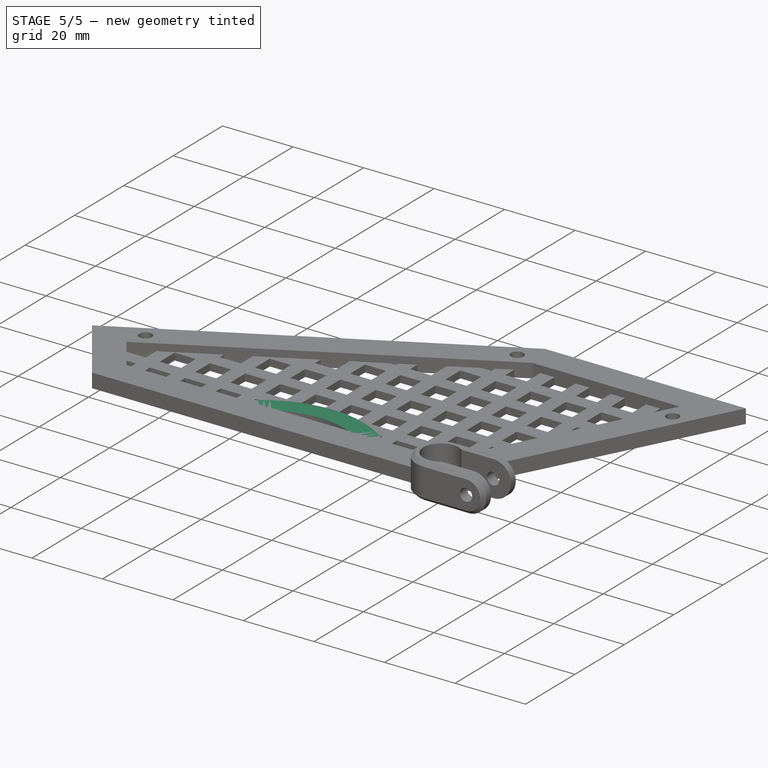
[diagram: stage 5 of 5 — iso view after this stage's code; geometry added in this stage tinted green]
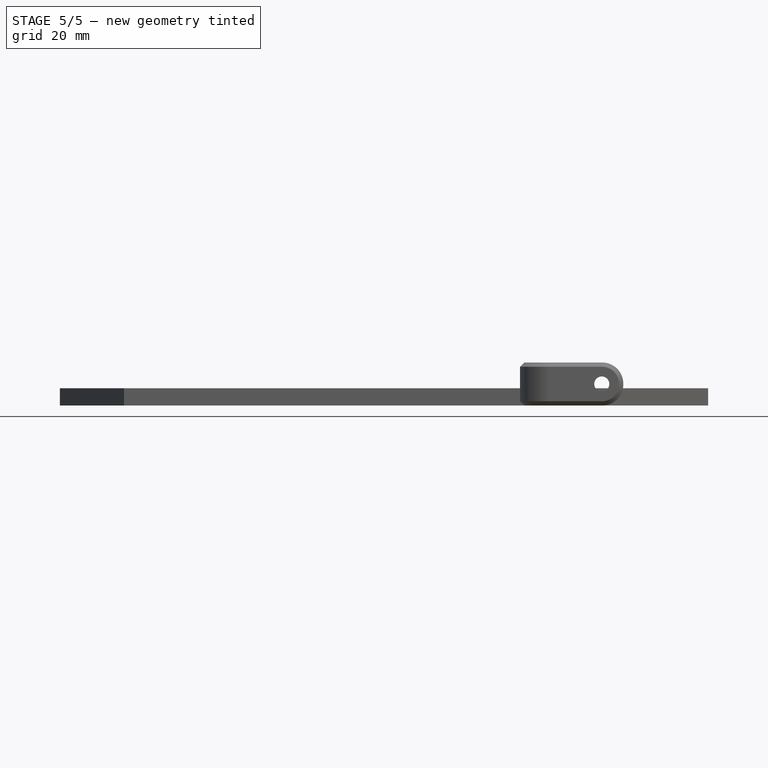
[diagram: stage 5 of 5 — front view after this stage's code; geometry added in this stage tinted green]
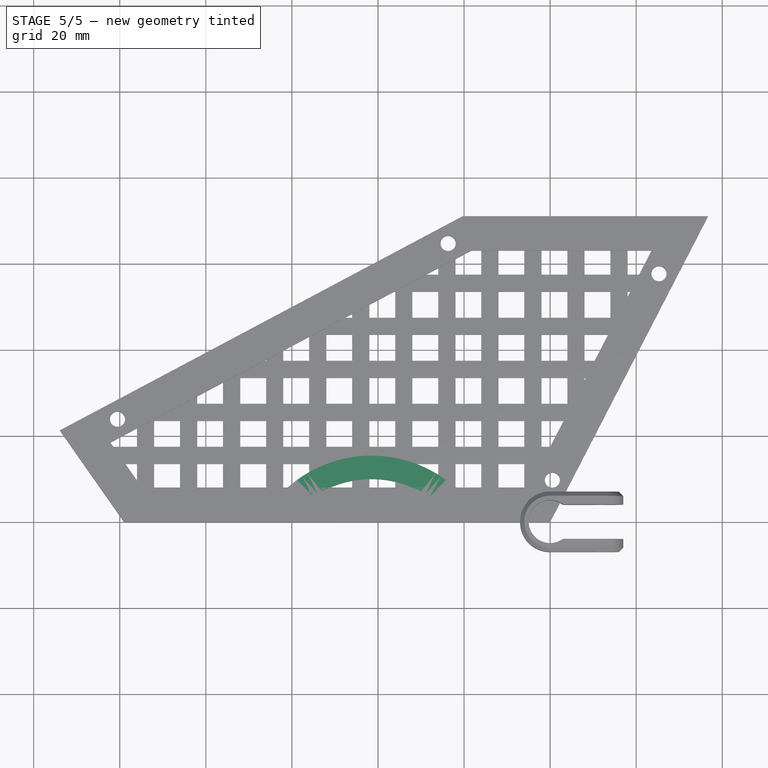
[diagram: stage 5 of 5 — top view after this stage's code; geometry added in this stage tinted green]
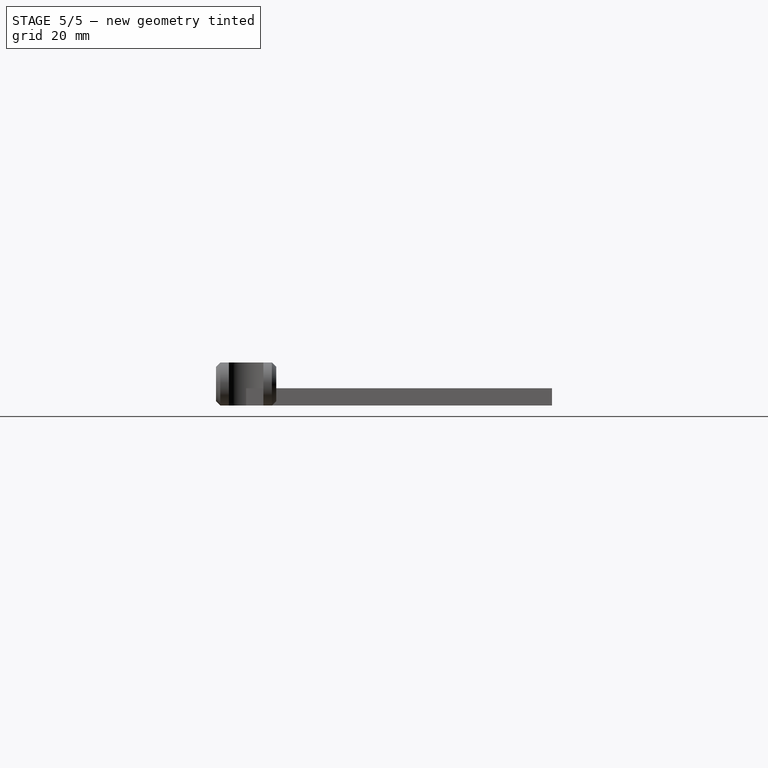
[diagram: stage 5 of 5 — right view after this stage's code; geometry added in this stage tinted green]
FEATURE [Sketcher::SketchObject] Sketch
  sketch-geometry (34):
    g0: LineSegment StartX=-113.913 StartY=21.298 StartZ=0 EndX=-20.2882 EndY=71.0791 EndZ=0
    g1: LineSegment StartX=-20.2882 StartY=71.0791 StartZ=0 EndX=36.7118 EndY=71.0791 EndZ=0
    g2: LineSegment StartX=36.7118 StartY=71.0791 StartZ=0 EndX=0 EndY=0 EndZ=0
    g3: LineSegment StartX=0 StartY=0 StartZ=0 EndX=-22 EndY=0 EndZ=0
    g4: LineSegment StartX=-113.913 StartY=21.298 StartZ=0 EndX=-99 EndY=0 EndZ=0
    g5: LineSegment StartX=-99 StartY=0 StartZ=0 EndX=-61 EndY=0 EndZ=0
    g6: ArcOfCircle CenterX=-41.5 CenterY=-13.9911 CenterZ=0 NormalX=0 NormalY=0 NormalZ=1 Radius=24 StartAngle=0.622368 EndAngle=2.51922
    g7: LineSegment [constr] StartX=-61 StartY=0 StartZ=0 EndX=-22 EndY=0 EndZ=0
    g8: LineSegment StartX=-61 StartY=8 StartZ=0 EndX=-94.8355 EndY=8 EndZ=0
    g9: LineSegment StartX=-94.8355 StartY=8 StartZ=0 EndX=-102.173 EndY=18.4795 EndZ=0
    g10: LineSegment StartX=-102.173 StartY=18.4795 StartZ=0 EndX=-18.2936 EndY=63.0791 EndZ=0
    g11: LineSegment StartX=-18.2936 StartY=63.0791 StartZ=0 EndX=23.5758 EndY=63.0791 EndZ=0
    g12: LineSegment StartX=23.5758 StartY=63.0791 StartZ=0 EndX=-4.87211 EndY=8 EndZ=0
    g13: LineSegment StartX=-4.87211 StartY=8 StartZ=0 EndX=-22 EndY=8 EndZ=0
    g14: LineSegment [constr] StartX=-61 StartY=8 StartZ=0 EndX=-22 EndY=8 EndZ=0
    g15: LineSegment [constr] StartX=23.5758 StartY=63.0791 StartZ=0 EndX=30.6837 EndY=59.408 EndZ=0
    g16: LineSegment [constr] StartX=-94.8355 StartY=8 StartZ=0 EndX=-101.389 EndY=3.41139 EndZ=0
    g17: LineSegment [constr] StartX=-102.173 StartY=18.4795 StartZ=0 EndX=-105.929 EndY=25.5431 EndZ=0
    g18: ArcOfCircle CenterX=-41.5 CenterY=-13.9911 CenterZ=0 NormalX=0 NormalY=0 NormalZ=1 Radius=29.3914 StartAngle=0.845365 EndAngle=2.29623
    g19: LineSegment [constr] StartX=-4.87211 StartY=8 StartZ=0 EndX=-4.87211 EndY=0 EndZ=0
    g20: LineSegment [constr] StartX=23.5758 StartY=71.0791 StartZ=0 EndX=23.5758 EndY=63.0791 EndZ=0
    g21: Circle CenterX=-100.519 CenterY=23.8892 CenterZ=0 NormalX=0 NormalY=0 NormalZ=1 Radius=1.75
    g22: Circle CenterX=-23.7033 CenterY=64.733 CenterZ=0 NormalX=0 NormalY=0 NormalZ=1 Radius=1.75
    g23: Circle CenterX=25.2942 CenterY=57.6896 CenterZ=0 NormalX=0 NormalY=0 NormalZ=1 Radius=1.75
    g24: LineSegment [constr] StartX=-100.519 StartY=23.8892 StartZ=0 EndX=-23.7033 EndY=64.733 EndZ=0
    g25: LineSegment [constr] StartX=23.5758 StartY=63.0791 StartZ=0 EndX=25.2942 EndY=57.6896 EndZ=0
    g26: LineSegment [constr] StartX=25.2942 StartY=57.6896 StartZ=0 EndX=30.6837 EndY=59.408 EndZ=0
    g27: LineSegment [constr] StartX=-105.929 StartY=25.5431 StartZ=0 EndX=-100.519 EndY=23.8892 EndZ=0
    g28: LineSegment [constr] StartX=-100.519 StartY=23.8892 StartZ=0 EndX=-102.173 EndY=18.4795 EndZ=0
    g29: LineSegment [constr] StartX=-18.2936 StartY=63.0791 StartZ=0 EndX=-22.0493 EndY=70.1427 EndZ=0
    g30: LineSegment [constr] StartX=-22.0493 StartY=70.1427 StartZ=0 EndX=-23.7033 EndY=64.733 EndZ=0
    g31: LineSegment [constr] StartX=25.2942 StartY=57.6896 StartZ=0 EndX=0.517434 EndY=9.71837 EndZ=0
    g32: Circle CenterX=0.517434 CenterY=9.71837 CenterZ=0 NormalX=0 NormalY=0 NormalZ=1 Radius=1.75
    g33: LineSegment [constr] StartX=0.517434 StartY=9.71837 StartZ=0 EndX=-4.87211 EndY=8 EndZ=0
  constraints (92):
    c: Coincident(g0,g1)
    c: Horizontal(g1)
    c: Coincident(g1,g2)
    c: Coincident(g2,g3)
    c: Coincident(g0,g4)
    c: Coincident(g4,g5)
    c: Horizontal(g5)
    c: Coincident(g6,g5)
    c: Coincident(g6,g3)
    c: Horizontal(g3)
    c: Angle(g0,g1) = 2.6529
    c: Angle(g4,g0) = 1.44862
    c: Distance(g4,g2) = 99
    c: Distance(g3) = 22
    c: Distance(g5) = 38
    c: Coincident(g7,g5)
    c: Coincident(g7,g3)
    c: Horizontal(g7)
    c: Radius(g6) = 24
    c: Distance(g4) = 26
    c: Distance(g2) = 80
    c: Distance(g1) = 57
    c: Coincident(g-1,g2)
    c: Horizontal(g8)
    c: Coincident(g8,g9)
    c: Coincident(g9,g10)
    c: Coincident(g10,g11)
    c: Coincident(g11,g12)
    c: Coincident(g12,g13)
    c: Horizontal(g13)
    c: Horizontal(g11)
    c: Parallel(g4,g9)
    c: Parallel(g0,g10)
    c: Parallel(g12,g2)
    c: Coincident(g14,g8)
    c: Horizontal(g14)
    c: Coincident(g15,g11)
    c: PointOnObject(g15,g2)
    c: Perpendicular(g2,g15)
    c: Distance(g15) = 8
    c: Coincident(g16,g8)
    c: PointOnObject(g16,g4)
    c: Perpendicular(g4,g16)
    c: Coincident(g17,g9)
    c: PointOnObject(g17,g0)
    c: Perpendicular(g0,g17)
    c: Equal(g14,g7)
    c: Coincident(g18,g6)
    c: Coincident(g18,g8)
    c: Equal(g17,g16)
    c: Equal(g16,g15)
    c: Coincident(g19,g12)
    c: PointOnObject(g19,g3)
    c: Vertical(g19)
    c: Coincident(g13,g14)
    c: Equal(g19,g15)
    c: Coincident(g13,g18)
    c: PointOnObject(g20,g1)
    c: Coincident(g20,g11)
    c: Vertical(g20)
    c: Equal(g20,g17)
    c: Coincident(g24,g21)
    c: Coincident(g24,g22)
    c: Parallel(g0,g24)
    c: Radius(g21) = 1.75
    c: Equal(g21,g22)
    c: Equal(g21,g23)
    c: Coincident(g25,g11)
    c: Coincident(g25,g23)
    c: Coincident(g26,g23)
    c: Coincident(g26,g15)
    c: Perpendicular(g26,g25)
    c: Equal(g25,g26)
    c: Coincident(g17,g27)
    c: Coincident(g27,g21)
    c: Coincident(g27,g28)
    c: Coincident(g28,g9)
    c: Equal(g27,g28)
    c: Perpendicular(g28,g27)
    c: Coincident(g29,g10)
    c: PointOnObject(g29,g0)
    c: Perpendicular(g0,g29)
    c: Coincident(g30,g29)
    c: Coincident(g30,g22)
    c: Equal(g30,g27)
    c: Coincident(g31,g23)
    c: Parallel(g12,g31)
    c: Coincident(g32,g31)
    c: Equal(g32,g22)
    c: Coincident(g33,g31)
    c: Coincident(g33,g12)
    c: Equal(g33,g26)
FEATURE [PartDesign::Pad] Pad
  Length = 4
  Length2 = 100
  Sketch = -> Sketch
  Type = 0
FEATURE [Part::MultiCommon] Common
  Shapes = -> [Pad001,Fusion]
FEATURE [PartDesign::Pad] Pad002
  Length = 25
  Length2 = 100
  Placement = pos=(0,0,-5) rot=(0,0,1;0rad)
  Sketch = -> Sketch002
  Type = 0
FEATURE [Part::MultiFuse] Fusion001
  Shapes = -> [Common,Pad]
FEATURE [Part::Cut] Cut
  Base = -> Fusion001
  Tool = -> Pad002
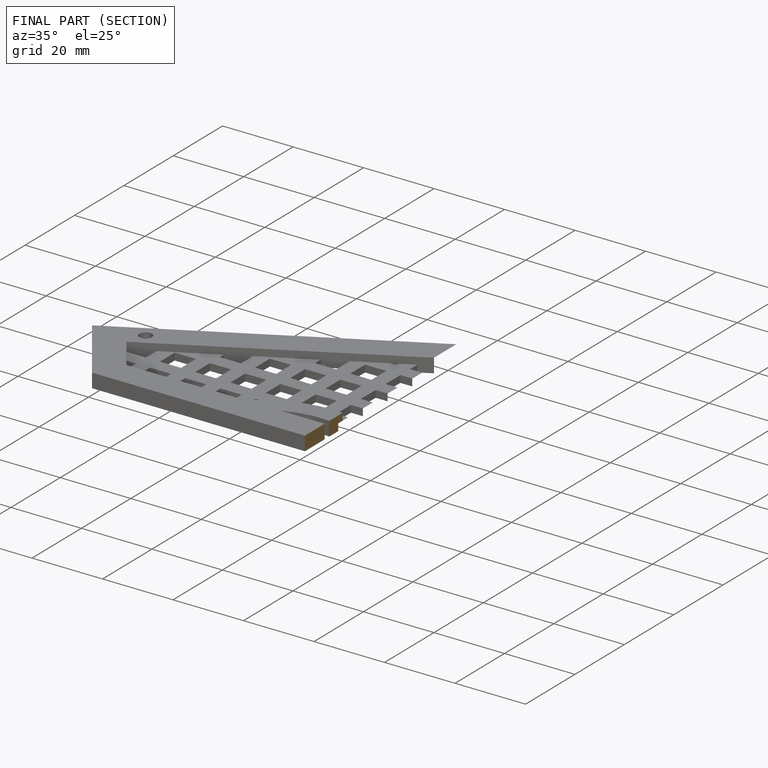
[diagram: finished part — half-section view (interior)]
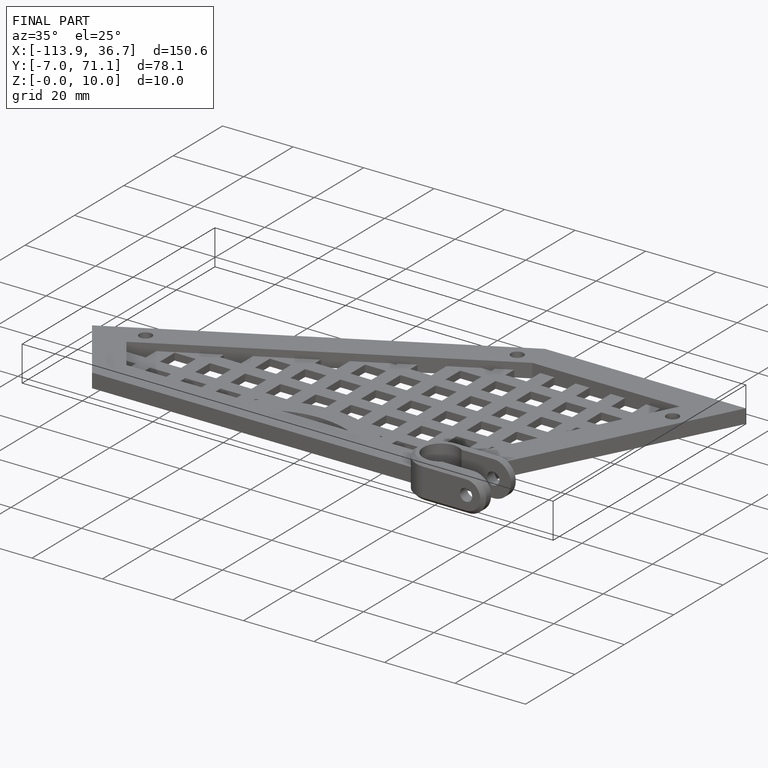
[diagram: finished part — iso view with bounding-box wireframe]
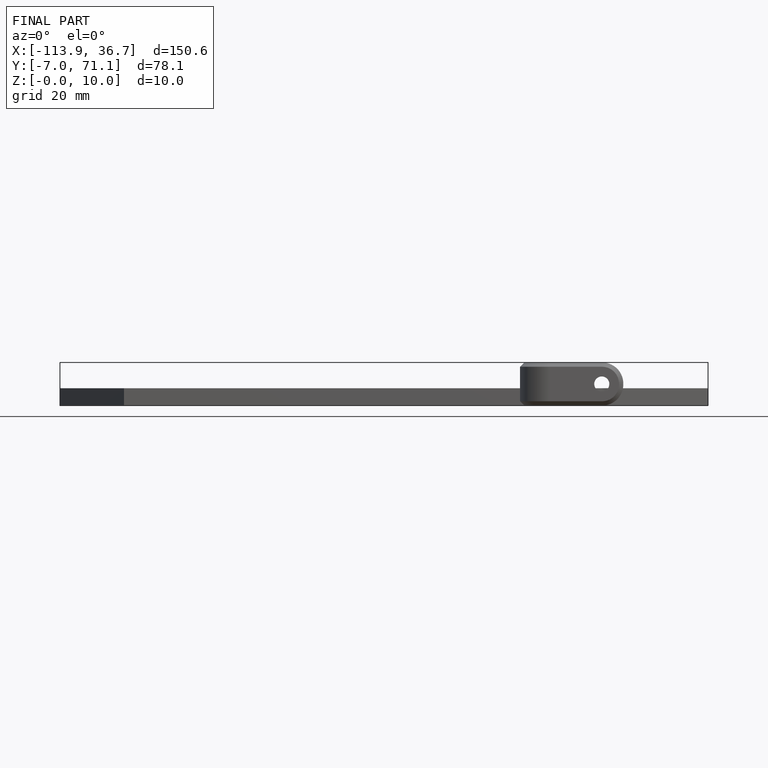
[diagram: finished part — front view with bounding-box wireframe]
